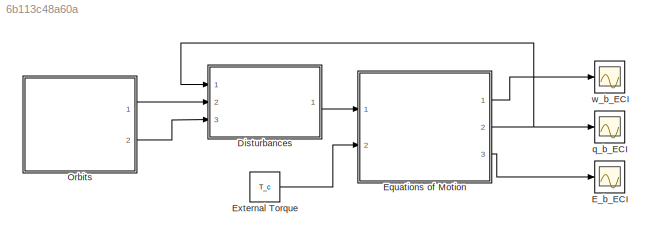
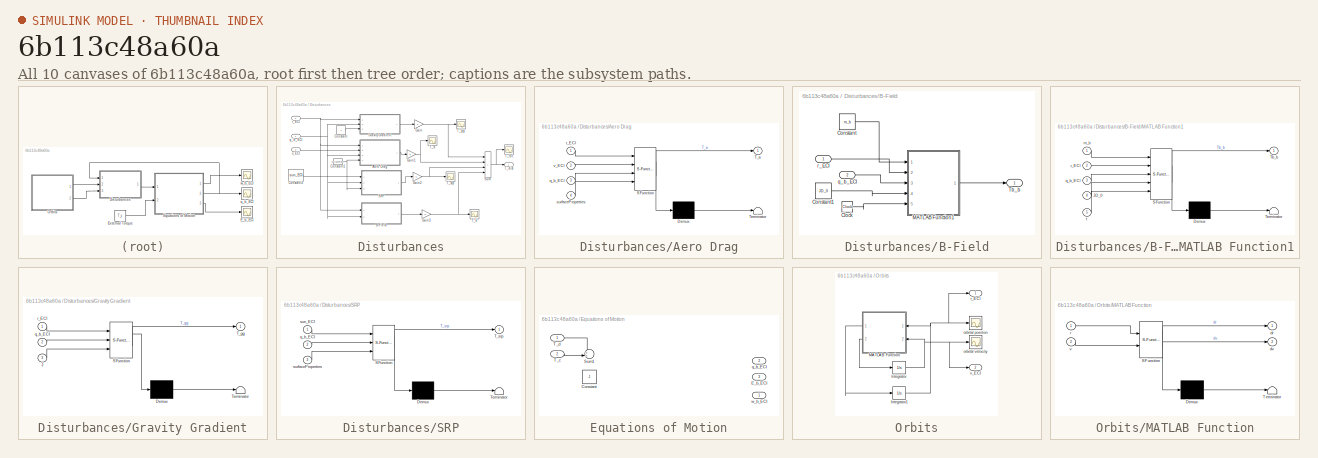
[diagram: thumbnail index - all 10 canvases of the model, root first then tree order]
MODEL slx_6b113c48a60a
KIND model
CONFIG AbsTol = auto
CONFIG EnableMultiTasking = off
CONFIG FixedStep = 10
CONFIG MaxStep = auto
CONFIG MinStep = auto
CONFIG RelTol = 1e-8
CONFIG SampleTimeConstraint = Unconstrained
CONFIG SolverName = VariableStepAuto
CONFIG StartTime = 0.0
CONFIG StopTime = tspan
WORKSPACE source: MATLAB code (in-file)
WORKSPACE mu = 398601
WORKSPACE Re = 6378.137
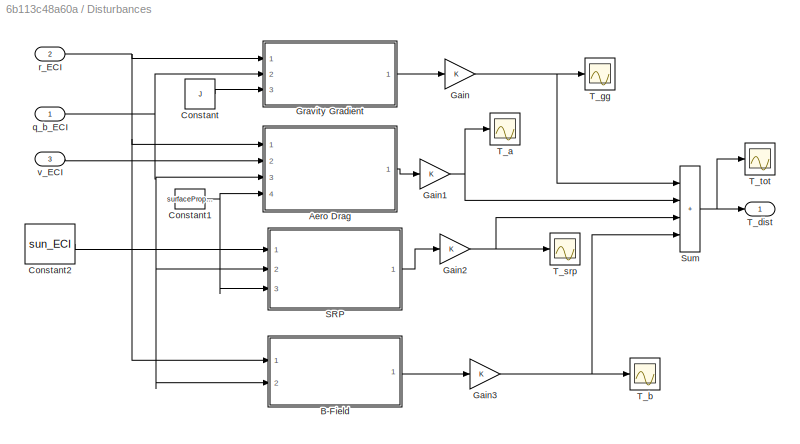
BLOCK [SubSystem] Disturbances
  Ports = [3, 1]
  RequestExecContextInheritance = off
BLOCK [SubSystem] Disturbances/Aero Drag
  ErrorFcn = Stateflow.Translate.translate
  PermitHierarchicalResolution = ExplicitOnly
  Ports = [4, 1]
  RequestExecContextInheritance = off
  SFBlockType = MATLAB Function
  TreatAsAtomicUnit = on
BLOCK [Demux] Disturbances/Aero Drag/ Demux 
  Outputs = 1
  Ports = [1, 1]
BLOCK [S-Function] Disturbances/Aero Drag/ SFunction 
  EnableBusSupport = on
  FunctionName = sf_sfun
  PortCounts = [4 2]
  Ports = [4, 2]
  SFcnIsStateOwnerBlock = off
  SFunctionDeploymentMode = off
  Tag = Stateflow S-Function 4
BLOCK [Terminator] Disturbances/Aero Drag/ Terminator 
BLOCK [Outport] Disturbances/Aero Drag/T_a
BLOCK [Inport] Disturbances/Aero Drag/q_b_ECI
  Port = 3
BLOCK [Inport] Disturbances/Aero Drag/r_ECI
BLOCK [Inport] Disturbances/Aero Drag/surfaceProperties
  Port = 4
BLOCK [Inport] Disturbances/Aero Drag/v_ECI
  Port = 2
BLOCK [SubSystem] Disturbances/B-Field
  Ports = [2, 1]
  RequestExecContextInheritance = off
BLOCK [Clock] Disturbances/B-Field/Clock
BLOCK [Constant] Disturbances/B-Field/Constant
  Value = m_b
  VectorParams1D = off
BLOCK [Constant] Disturbances/B-Field/Constant1
  Value = JD_0
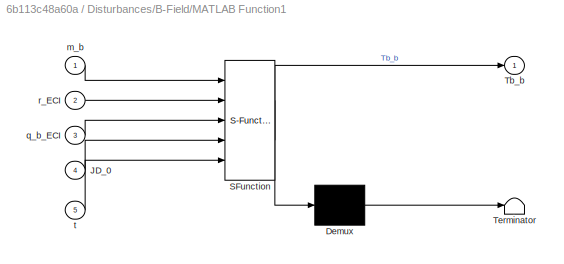
BLOCK [SubSystem] Disturbances/B-Field/MATLAB Function1
  ErrorFcn = Stateflow.Translate.translate
  PermitHierarchicalResolution = ExplicitOnly
  Ports = [5, 1]
  RequestExecContextInheritance = off
  SFBlockType = MATLAB Function
  TreatAsAtomicUnit = on
BLOCK [Demux] Disturbances/B-Field/MATLAB Function1/ Demux 
  Outputs = 1
  Ports = [1, 1]
BLOCK [S-Function] Disturbances/B-Field/MATLAB Function1/ SFunction 
  EnableBusSupport = on
  FunctionName = sf_sfun
  PortCounts = [5 2]
  Ports = [5, 2]
  SFcnIsStateOwnerBlock = off
  SFunctionDeploymentMode = off
  Tag = Stateflow S-Function 7
BLOCK [Terminator] Disturbances/B-Field/MATLAB Function1/ Terminator 
BLOCK [Inport] Disturbances/B-Field/MATLAB Function1/JD_0
  Port = 4
BLOCK [Outport] Disturbances/B-Field/MATLAB Function1/Tb_b
BLOCK [Inport] Disturbances/B-Field/MATLAB Function1/m_b
BLOCK [Inport] Disturbances/B-Field/MATLAB Function1/q_b_ECI
  Port = 3
BLOCK [Inport] Disturbances/B-Field/MATLAB Function1/r_ECI
  Port = 2
BLOCK [Inport] Disturbances/B-Field/MATLAB Function1/t
  Port = 5
BLOCK [Outport] Disturbances/B-Field/Tb_b
BLOCK [Inport] Disturbances/B-Field/q_b_ECI
  Port = 2
BLOCK [Inport] Disturbances/B-Field/r_ECI
BLOCK [Constant] Disturbances/Constant
  Value = J
BLOCK [Constant] Disturbances/Constant1
  Value = surfaceProperties
BLOCK [Constant] Disturbances/Constant2
  Value = sun_ECI
BLOCK [Gain] Disturbances/Gain
BLOCK [Gain] Disturbances/Gain1
BLOCK [Gain] Disturbances/Gain2
BLOCK [Gain] Disturbances/Gain3
BLOCK [SubSystem] Disturbances/Gravity Gradient
  ErrorFcn = Stateflow.Translate.translate
  PermitHierarchicalResolution = ExplicitOnly
  Ports = [3, 1]
  RequestExecContextInheritance = off
  SFBlockType = MATLAB Function
  TreatAsAtomicUnit = on
BLOCK [Demux] Disturbances/Gravity Gradient/ Demux 
  Outputs = 1
  Ports = [1, 1]
BLOCK [S-Function] Disturbances/Gravity Gradient/ SFunction 
  EnableBusSupport = on
  FunctionName = sf_sfun
  PortCounts = [3 2]
  Ports = [3, 2]
  SFcnIsStateOwnerBlock = off
  SFunctionDeploymentMode = off
  Tag = Stateflow S-Function 3
BLOCK [Terminator] Disturbances/Gravity Gradient/ Terminator 
BLOCK [Inport] Disturbances/Gravity Gradient/J
  Port = 3
BLOCK [Outport] Disturbances/Gravity Gradient/T_gg
BLOCK [Inport] Disturbances/Gravity Gradient/q_b_ECI
  Port = 2
BLOCK [Inport] Disturbances/Gravity Gradient/r_ECI
BLOCK [SubSystem] Disturbances/SRP
  ErrorFcn = Stateflow.Translate.translate
  PermitHierarchicalResolution = ExplicitOnly
  Ports = [3, 1]
  RequestExecContextInheritance = off
  SFBlockType = MATLAB Function
  TreatAsAtomicUnit = on
BLOCK [Demux] Disturbances/SRP/ Demux 
  Outputs = 1
  Ports = [1, 1]
BLOCK [S-Function] Disturbances/SRP/ SFunction 
  EnableBusSupport = on
  FunctionName = sf_sfun
  PortCounts = [3 2]
  Ports = [3, 2]
  SFcnIsStateOwnerBlock = off
  SFunctionDeploymentMode = off
  Tag = Stateflow S-Function 5
BLOCK [Terminator] Disturbances/SRP/ Terminator 
BLOCK [Outport] Disturbances/SRP/T_srp
BLOCK [Inport] Disturbances/SRP/q_b_ECI
  Port = 2
BLOCK [Inport] Disturbances/SRP/sun_ECI
BLOCK [Inport] Disturbances/SRP/surfaceProperties
  Port = 3
BLOCK [Sum] Disturbances/Sum
  IconShape = rectangular
  Inputs = ++++
  Ports = [4, 1]
BLOCK [Scope] Disturbances/T_a
  Floating = off
  NumInputPorts = 1
  Ports = [1]
  ScopeSpecificationString = Simulink.scopes.TimeScopeBlockCfg('CurrentConfiguration', extmgr.ConfigurationSet(extmgr.Configuration('Core','General UI',true),extmgr.Configuration('Core','Source UI',true),extmgr.Configuration('Sources','WiredSimulink',true,'DataLoggingVariableName','T_a','DataLogging',true,'DataLoggingSaveFormat','Structure'),extmgr.Configuration('Visuals','Time Domain',true,'SerializedDisplays',{struct('MinYL...<+1605ch>
BLOCK [Scope] Disturbances/T_b
  Floating = off
  NumInputPorts = 1
  Ports = [1]
  ScopeSpecificationString = Simulink.scopes.TimeScopeBlockCfg('CurrentConfiguration', extmgr.ConfigurationSet(extmgr.Configuration('Core','General UI',true),extmgr.Configuration('Core','Source UI',true),extmgr.Configuration('Sources','WiredSimulink',true,'DataLoggingVariableName','T_b','DataLogging',true,'DataLoggingSaveFormat','Structure'),extmgr.Configuration('Visuals','Time Domain',true,'SerializedDisplays',{struct('MinYL...<+1667ch>
BLOCK [Outport] Disturbances/T_dist
BLOCK [Scope] Disturbances/T_gg
  Floating = off
  NumInputPorts = 1
  Ports = [1]
  ScopeSpecificationString = Simulink.scopes.TimeScopeBlockCfg('CurrentConfiguration', extmgr.ConfigurationSet(extmgr.Configuration('Core','General UI',true),extmgr.Configuration('Core','Source UI',true),extmgr.Configuration('Sources','WiredSimulink',true,'DataLoggingVariableName','T_gg','DataLogging',true,'DataLoggingSaveFormat','Structure'),extmgr.Configuration('Visuals','Time Domain',true,'SerializedDisplays',{struct('MinY...<+1605ch>
BLOCK [Scope] Disturbances/T_srp
  Floating = off
  NumInputPorts = 1
  Ports = [1]
  ScopeSpecificationString = Simulink.scopes.TimeScopeBlockCfg('CurrentConfiguration', extmgr.ConfigurationSet(extmgr.Configuration('Core','General UI',true),extmgr.Configuration('Core','Source UI',true),extmgr.Configuration('Sources','WiredSimulink',true,'DataLoggingVariableName','T_srp','DataLogging',true,'DataLoggingSaveFormat','Structure'),extmgr.Configuration('Visuals','Time Domain',true,'SerializedDisplays',{struct('Min...<+1676ch>
BLOCK [Scope] Disturbances/T_tot
  Floating = off
  NumInputPorts = 1
  Ports = [1]
  ScopeSpecificationString = Simulink.scopes.TimeScopeBlockCfg('CurrentConfiguration', extmgr.ConfigurationSet(extmgr.Configuration('Core','General UI',true),extmgr.Configuration('Core','Source UI',true),extmgr.Configuration('Sources','WiredSimulink',true,'DataLoggingVariableName','T_tot','DataLogging',true,'DataLoggingSaveFormat','Structure'),extmgr.Configuration('Visuals','Time Domain',true,'SerializedDisplays',{struct('Min...<+1488ch>
BLOCK [Inport] Disturbances/q_b_ECI
BLOCK [Inport] Disturbances/r_ECI
  Port = 2
BLOCK [Inport] Disturbances/v_ECI
  Port = 3
BLOCK [Scope] E_b_ECI
  Floating = off
  NumInputPorts = 1
  Ports = [1]
  ScopeSpecificationString = Simulink.scopes.TimeScopeBlockCfg('CurrentConfiguration', extmgr.ConfigurationSet(extmgr.Configuration('Core','General UI',true),extmgr.Configuration('Core','Source UI',true),extmgr.Configuration('Sources','WiredSimulink',true,'DataLoggingVariableName','E_b_ECI','DataLogging',true,'DataLoggingSaveFormat','Structure'),extmgr.Configuration('Visuals','Time Domain',true,'SerializedDisplays',{struct('M...<+1667ch>
BLOCK [SubSystem] Equations of Motion
  Ports = [2, 3]
  RequestExecContextInheritance = off
BLOCK [Constant] Equations of Motion/Constant
  Value = J
BLOCK [Outport] Equations of Motion/E_b_ECI
  Port = 3
  VectorParamsAs1DForOutWhenUnconnected = off
BLOCK [Sum] Equations of Motion/Sum1
  Inputs = ++|
  Ports = [2, 1]
BLOCK [Inport] Equations of Motion/T_c
  Port = 2
BLOCK [Inport] Equations of Motion/T_d
BLOCK [Outport] Equations of Motion/q_b_ECI
  Port = 2
  VectorParamsAs1DForOutWhenUnconnected = off
BLOCK [Outport] Equations of Motion/w_b_ECI
  VectorParamsAs1DForOutWhenUnconnected = off
BLOCK [Constant] External Torque
  Value = T_c
BLOCK [SubSystem] Orbits
  Ports = [0, 2]
  RequestExecContextInheritance = off
BLOCK [Integrator] Orbits/Integrator
  InitialCondition = v_ECI_0
  Ports = [1, 1]
BLOCK [Integrator] Orbits/Integrator1
  InitialCondition = r_ECI_0
  Ports = [1, 1]
BLOCK [SubSystem] Orbits/MATLAB Function
  ErrorFcn = Stateflow.Translate.translate
  PermitHierarchicalResolution = ExplicitOnly
  Ports = [2, 2]
  RequestExecContextInheritance = off
  SFBlockType = MATLAB Function
  TreatAsAtomicUnit = on
BLOCK [Demux] Orbits/MATLAB Function/ Demux 
  Outputs = 1
  Ports = [1, 1]
BLOCK [S-Function] Orbits/MATLAB Function/ SFunction 
  EnableBusSupport = on
  FunctionName = sf_sfun
  PortCounts = [2 3]
  Ports = [2, 3]
  SFcnIsStateOwnerBlock = off
  SFunctionDeploymentMode = off
  Tag = Stateflow S-Function 6
BLOCK [Terminator] Orbits/MATLAB Function/ Terminator 
BLOCK [Outport] Orbits/MATLAB Function/dr
  VectorParamsAs1DForOutWhenUnconnected = off
BLOCK [Outport] Orbits/MATLAB Function/dv
  Port = 2
  VectorParamsAs1DForOutWhenUnconnected = off
BLOCK [Inport] Orbits/MATLAB Function/r
BLOCK [Inport] Orbits/MATLAB Function/v
  Port = 2
BLOCK [Scope] Orbits/orbital position
  Floating = off
  NumInputPorts = 1
  Ports = [1]
  ScopeSpecificationString = Simulink.scopes.TimeScopeBlockCfg('CurrentConfiguration', extmgr.ConfigurationSet(extmgr.Configuration('Core','General UI',true),extmgr.Configuration('Core','Source UI',true),extmgr.Configuration('Sources','WiredSimulink',true,'DataLogging',true,'DataLoggingVariableName','r_ECI','DataLoggingSaveFormat','Array','DataLoggingDecimation','1','DataLoggingDecimateData',true),extmgr.Configuration('Visual...<+1784ch>
BLOCK [Scope] Orbits/orbital velocity
  Floating = off
  NumInputPorts = 1
  Ports = [1]
  ScopeSpecificationString = Simulink.scopes.TimeScopeBlockCfg('CurrentConfiguration', extmgr.ConfigurationSet(extmgr.Configuration('Core','General UI',true),extmgr.Configuration('Core','Source UI',true),extmgr.Configuration('Sources','WiredSimulink',true,'DataLogging',true,'DataLoggingVariableName','v_ECI','DataLoggingSaveFormat','Array','DataLoggingDecimation','1','DataLoggingDecimateData',true),extmgr.Configuration('Visual...<+1704ch>
BLOCK [Outport] Orbits/r_ECI
  VectorParamsAs1DForOutWhenUnconnected = off
BLOCK [Outport] Orbits/v_ECI
  Port = 2
  VectorParamsAs1DForOutWhenUnconnected = off
BLOCK [Scope] q_b_ECI
  Floating = off
  NumInputPorts = 1
  Ports = [1]
  ScopeSpecificationString = Simulink.scopes.TimeScopeBlockCfg('CurrentConfiguration', extmgr.ConfigurationSet(extmgr.Configuration('Core','General UI',true),extmgr.Configuration('Core','Source UI',true),extmgr.Configuration('Sources','WiredSimulink',true,'DataLoggingVariableName','q_b_ECI','DataLogging',true,'DataLoggingSaveFormat','Structure'),extmgr.Configuration('Visuals','Time Domain',true,'SerializedDisplays',{struct('M...<+1689ch>
BLOCK [Scope] w_b_ECI
  Floating = off
  NumInputPorts = 1
  Ports = [1]
  ScopeSpecificationString = Simulink.scopes.TimeScopeBlockCfg('CurrentConfiguration', extmgr.ConfigurationSet(extmgr.Configuration('Core','General UI',true),extmgr.Configuration('Core','Source UI',true),extmgr.Configuration('Sources','WiredSimulink',true,'DataLoggingVariableName','w_b_ECI','DataLogging',true,'DataLoggingSaveFormat','Structure'),extmgr.Configuration('Visuals','Time Domain',true,'SerializedDisplays',{struct('M...<+1519ch>
LINE Disturbances/Aero Drag:1 -> Disturbances/Gain1:1
LINE Disturbances/B-Field/Clock:1 -> Disturbances/B-Field/MATLAB Function1:5
LINE Disturbances/B-Field/Constant1:1 -> Disturbances/B-Field/MATLAB Function1:4
LINE Disturbances/B-Field/Constant:1 -> Disturbances/B-Field/MATLAB Function1:1
LINE Disturbances/B-Field/MATLAB Function1:1 -> Disturbances/B-Field/Tb_b:1
LINE Disturbances/B-Field/q_b_ECI:1 -> Disturbances/B-Field/MATLAB Function1:3
LINE Disturbances/B-Field/r_ECI:1 -> Disturbances/B-Field/MATLAB Function1:2
LINE Disturbances/B-Field:1 -> Disturbances/Gain3:1
NET Disturbances/Constant1:1 -> Disturbances/Aero Drag:4, Disturbances/SRP:3
LINE Disturbances/Constant2:1 -> Disturbances/SRP:1
LINE Disturbances/Constant:1 -> Disturbances/Gravity Gradient:3
NET Disturbances/Gain1:1 -> Disturbances/Sum:2, Disturbances/T_a:1
NET Disturbances/Gain2:1 -> Disturbances/Sum:3, Disturbances/T_srp:1
NET Disturbances/Gain3:1 -> Disturbances/Sum:4, Disturbances/T_b:1
NET Disturbances/Gain:1 -> Disturbances/Sum:1, Disturbances/T_gg:1
LINE Disturbances/Gravity Gradient:1 -> Disturbances/Gain:1
LINE Disturbances/SRP:1 -> Disturbances/Gain2:1
NET Disturbances/Sum:1 -> Disturbances/T_dist:1, Disturbances/T_tot:1
NET Disturbances/q_b_ECI:1 -> Disturbances/Aero Drag:3, Disturbances/B-Field:2, Disturbances/Gravity Gradient:2, Disturbances/SRP:2
NET Disturbances/r_ECI:1 -> Disturbances/Aero Drag:1, Disturbances/B-Field:1, Disturbances/Gravity Gradient:1
LINE Disturbances/v_ECI:1 -> Disturbances/Aero Drag:2
LINE Disturbances:1 -> Equations of Motion:1
LINE Equations of Motion/T_c:1 -> Equations of Motion/Sum1:2
LINE Equations of Motion/T_d:1 -> Equations of Motion/Sum1:1
LINE Equations of Motion:1 -> w_b_ECI:1
NET Equations of Motion:2 -> Disturbances:1, q_b_ECI:1
LINE Equations of Motion:3 -> E_b_ECI:1
LINE External Torque:1 -> Equations of Motion:2
NET Orbits/Integrator1:1 -> Orbits/MATLAB Function:1, Orbits/orbital position:1, Orbits/r_ECI:1
NET Orbits/Integrator:1 -> Orbits/MATLAB Function:2, Orbits/orbital velocity:1, Orbits/v_ECI:1
LINE Orbits/MATLAB Function:1 -> Orbits/Integrator1:1
LINE Orbits/MATLAB Function:2 -> Orbits/Integrator:1
LINE Orbits:1 -> Disturbances:2
LINE Orbits:2 -> Disturbances:3
note: NET lines group one-source signal fan-out (src -> all destinations, sorted); 1:1 wires keep LINE
CHART Disturbances/Gravity Gradient states=1 transitions=1
  STATE_LABEL 'eML_blk_kernel()'
  STATE_LABEL 'SCRIPT:\nfunction T_gg = gg_torque(r_ECI, q_b_ECI, J)\n\n'
CHART Disturbances/Aero Drag states=1 transitions=1
  STATE_LABEL 'eML_blk_kernel()'
  STATE_LABEL 'SCRIPT:\nfunction T_a = aero_drag_torque(r_ECI, v_ECI, q_b_ECI, surfaceProperties) \n\n% Convert v_ECI to v_b\n\n% Calculate density using standard exponetial decay model (or model of your\n% choice)\n\n% Loop through all the surfaces of the MehielSat\nfor i = 1:length(surfaceProperties)\n    % Find wetted area\n\n    if A_wet > 0\n        % Add to total torque from atmospheric drag\n    end\nend\n'
CHART Disturbances/SRP states=1 transitions=1
  STATE_LABEL 'eML_blk_kernel()'
  STATE_LABEL 'SCRIPT:\nfunction T_srp  = SPR_torque(sun_ECI, q_b_ECI, surfaceProperties)\n\np_sun = 4.5e-6; %N/m (given)'
CHART Orbits/MATLAB Function states=1 transitions=1
  STATE_LABEL 'eML_blk_kernel()'
  STATE_LABEL 'SCRIPT:\nfunction [dr,dv] = orbitalDynamics(r, v)\n%#codegen\n'
CHART Disturbances/B-Field/MATLAB Function1 states=1 transitions=1
  STATE_LABEL 'eML_blk_kernel()'
  STATE_LABEL 'SCRIPT:\nfunction Tb_b = WMM(m_b, r_ECI, q_b_ECI, JD_0, t)\n\n% DGRF 2020 (given)\na = 6371.2; %km\ng_11 = -1450.9; %nT\nh_11 = 4652.5; %nT\ng_10 = -29404.8; %nT\nm_ECEF = a^3*[g_11; h_11; g_10];\n\n'
CHART  states=0 transitions=0
CHART  states=0 transitions=0
CHART  states=0 transitions=0
CHART  states=0 transitions=0
CHART  states=0 transitions=0
